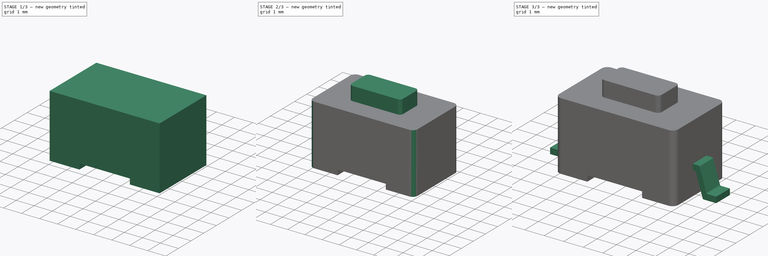
[diagram: build sequence overview — one tinted view per stage of 3, left to right]
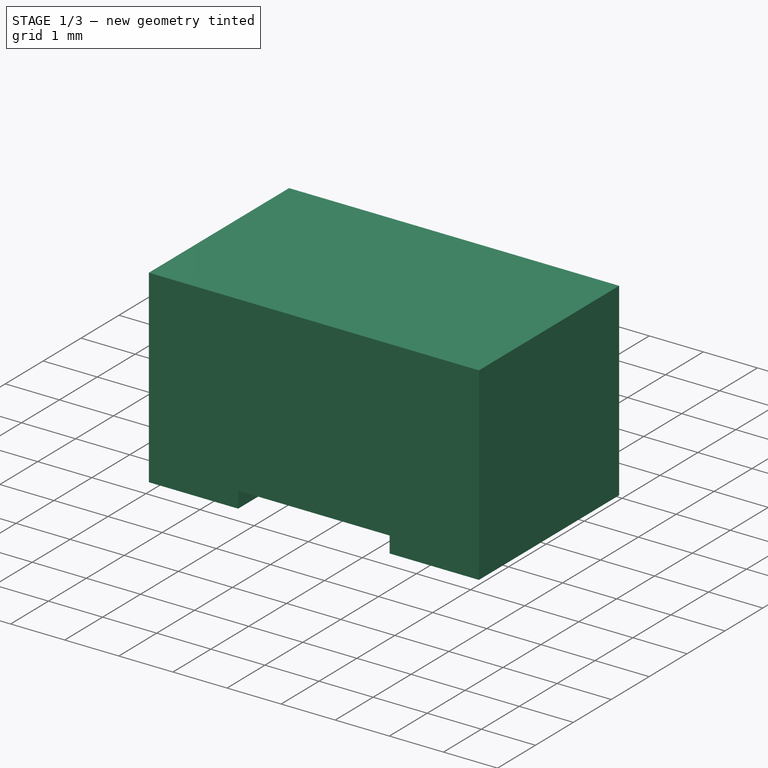
[diagram: stage 1 of 3 — iso view after this stage's code; geometry added in this stage tinted green]
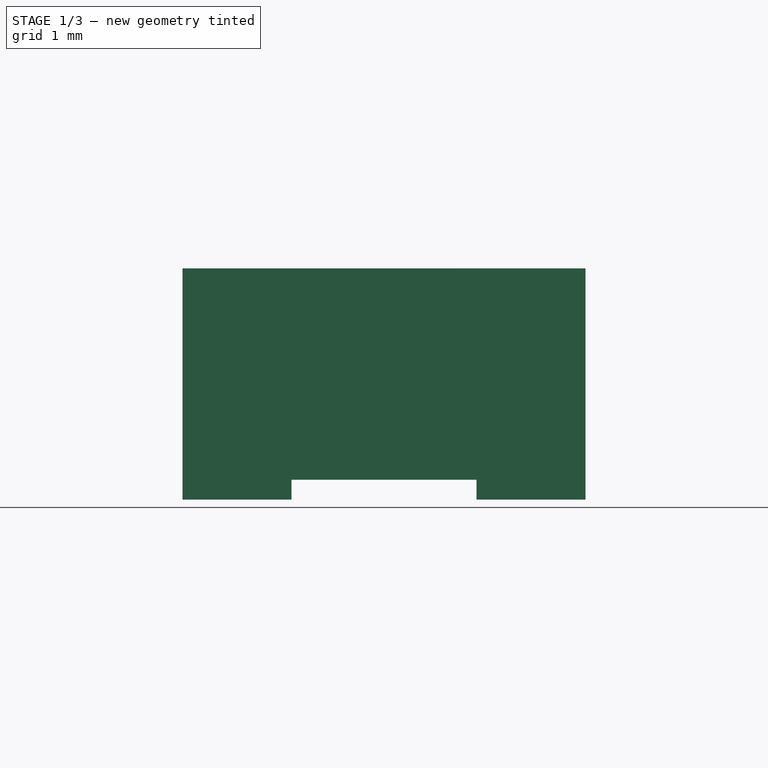
[diagram: stage 1 of 3 — front view after this stage's code; geometry added in this stage tinted green]
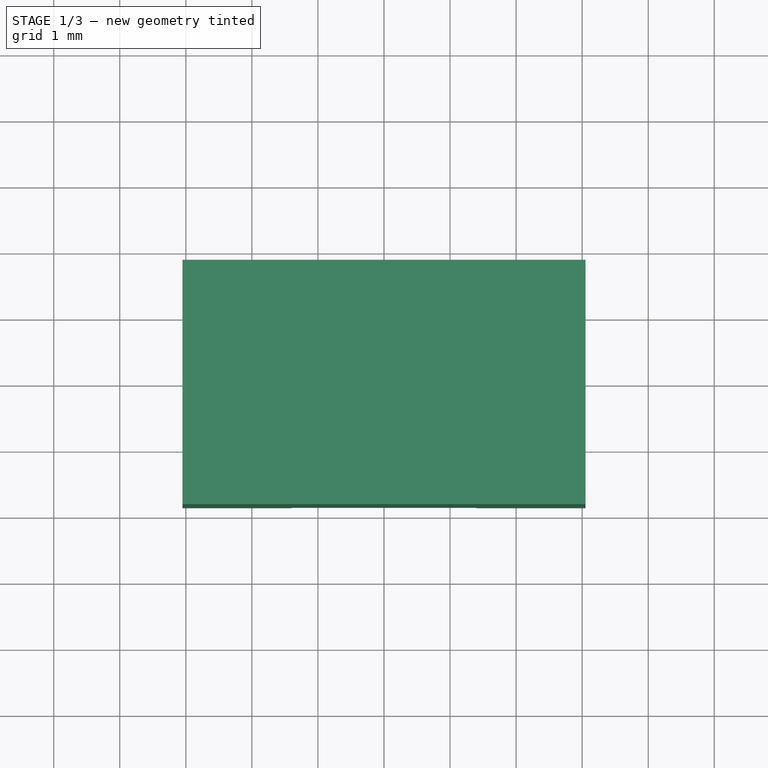
[diagram: stage 1 of 3 — top view after this stage's code; geometry added in this stage tinted green]
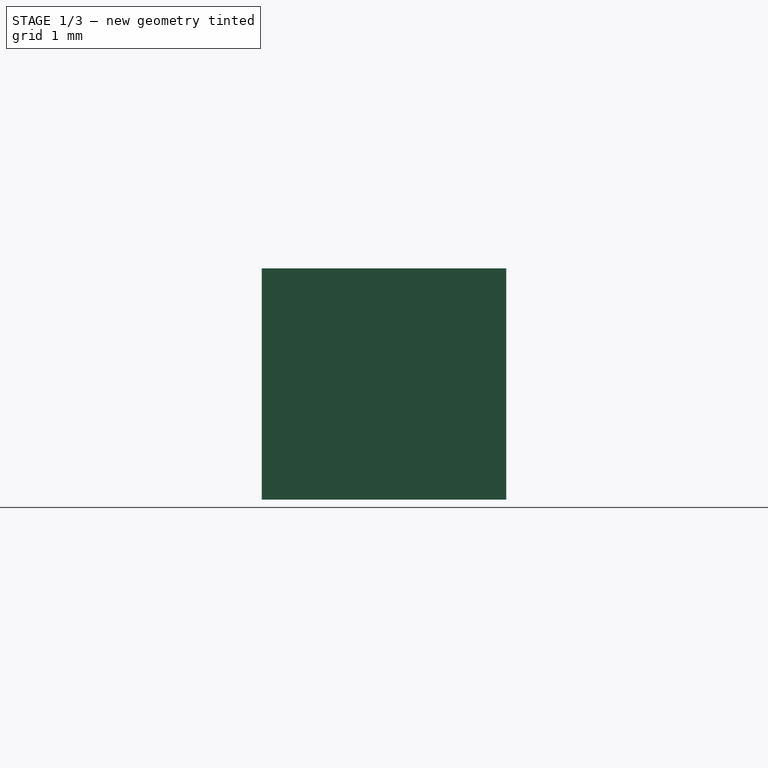
[diagram: stage 1 of 3 — right view after this stage's code; geometry added in this stage tinted green]
FCSTD DOCUMENT  (FreeCAD 0.16R6712 (Git))
Label: SW_3x6_1,6x7,4
License: All rights reserved
LicenseURL: http://en.wikipedia.org/wiki/All_rights_reserved
objects: Sketcher::SketchObject×4, PartDesign::Pad×3, PartDesign::Fillet×2, PartDesign::Pocket×1, Part::MultiFuse×1
note: 15 computed .brp shape members not serialized (recipe doc carries the construction recipe); baked Part::Feature solids carry a one-line shape summary decoded from their .brp

FEATURE [Sketcher::SketchObject] Sketch001  label="korpus"
  sketch-geometry (4):
    g0: LineSegment StartX=-3.05 StartY=1.85 StartZ=0 EndX=3.05 EndY=1.85 EndZ=0
    g1: LineSegment StartX=3.05 StartY=1.85 StartZ=0 EndX=3.05 EndY=-1.85 EndZ=0
    g2: LineSegment StartX=3.05 StartY=-1.85 StartZ=0 EndX=-3.05 EndY=-1.85 EndZ=0
    g3: LineSegment StartX=-3.05 StartY=-1.85 StartZ=0 EndX=-3.05 EndY=1.85 EndZ=0
  constraints (12):
    c: Coincident(g0,g1)
    c: Coincident(g1,g2)
    c: Coincident(g2,g3)
    c: Coincident(g3,g0)
    c: Horizontal(g0)
    c: Horizontal(g2)
    c: Vertical(g1)
    c: Vertical(g3)
    c: Symmetric(g0,g1,g-1)
    c: Symmetric(g0,g0,g-2)
    c: DistanceX(g2,g2) = 6.1
    c: DistanceY(g1,g1) = 3.7
FEATURE [PartDesign::Pad] Pad001  label="korpus001"
  Length = 3.5
  Length2 = 100
  Sketch = -> Sketch001
  Type = 0
FEATURE [Sketcher::SketchObject] Sketch002
  ExternalGeometry = -> [Pad001]
  Placement = pos=(0,0,0) rot=(1,0,0;3.14159rad)
  Support = -> Pad001 [Face5]
  sketch-geometry (4):
    g0: LineSegment StartX=-1.4 StartY=1.85 StartZ=0 EndX=1.4 EndY=1.85 EndZ=0
    g1: LineSegment StartX=1.4 StartY=1.85 StartZ=0 EndX=1.4 EndY=-1.85 EndZ=0
    g2: LineSegment StartX=1.4 StartY=-1.85 StartZ=0 EndX=-1.4 EndY=-1.85 EndZ=0
    g3: LineSegment StartX=-1.4 StartY=-1.85 StartZ=0 EndX=-1.4 EndY=1.85 EndZ=0
  constraints (12):
    c: Coincident(g0,g1)
    c: Coincident(g1,g2)
    c: Coincident(g2,g3)
    c: Coincident(g3,g0)
    c: Horizontal(g0)
    c: Horizontal(g2)
    c: Vertical(g1)
    c: Vertical(g3)
    c: Symmetric(g1,g2,g-2)
    c: Symmetric(g1,g0,g-1)
    c: PointOnObject(g0,g-3)
    c: DistanceX(g2,g2) = 2.8
FEATURE [PartDesign::Pocket] Pocket  label="korpus_spod_wyciecie"
  Length = 0.3
  Sketch = -> Sketch002
  Type = 0
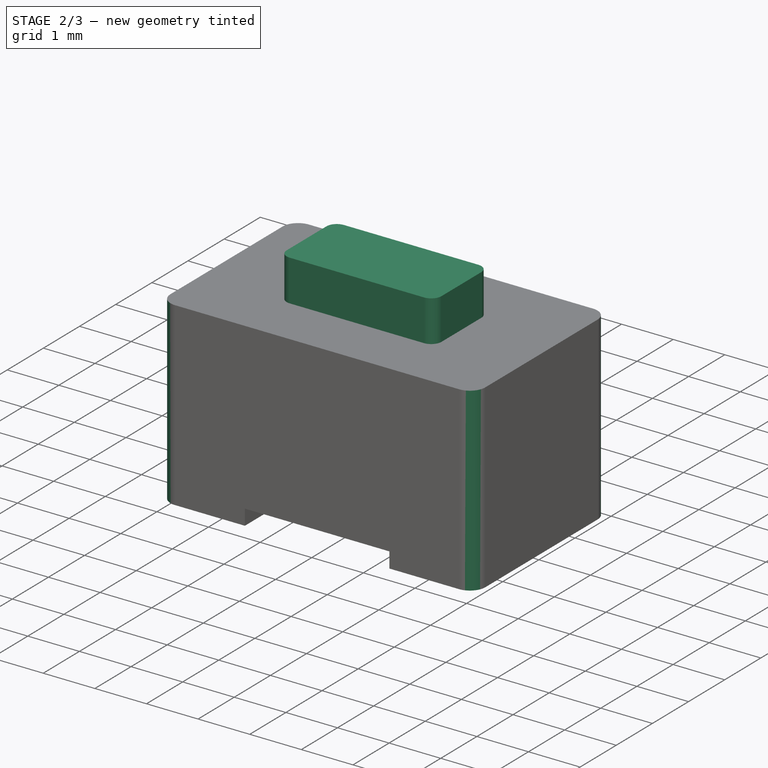
[diagram: stage 2 of 3 — iso view after this stage's code; geometry added in this stage tinted green]
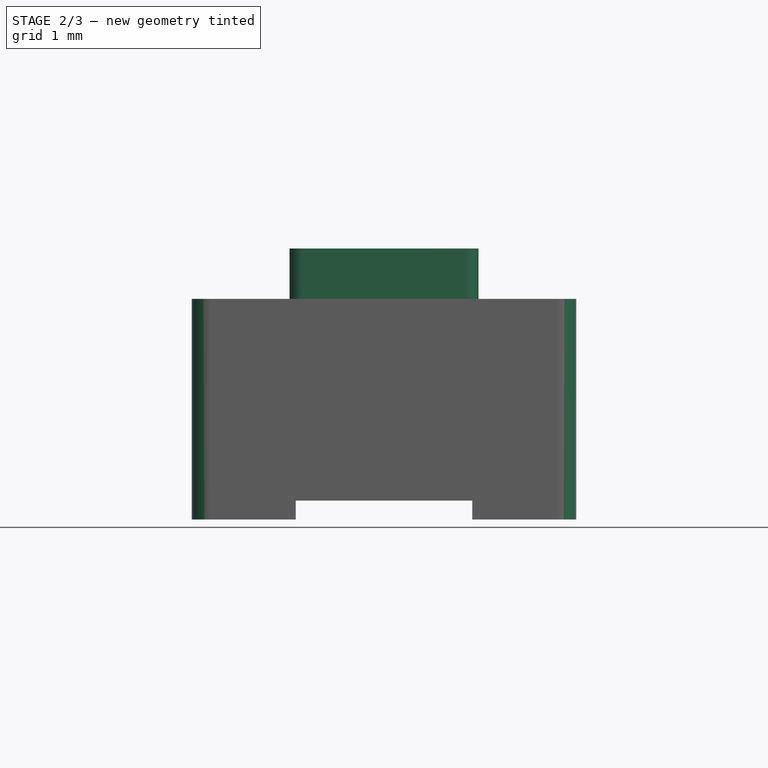
[diagram: stage 2 of 3 — front view after this stage's code; geometry added in this stage tinted green]
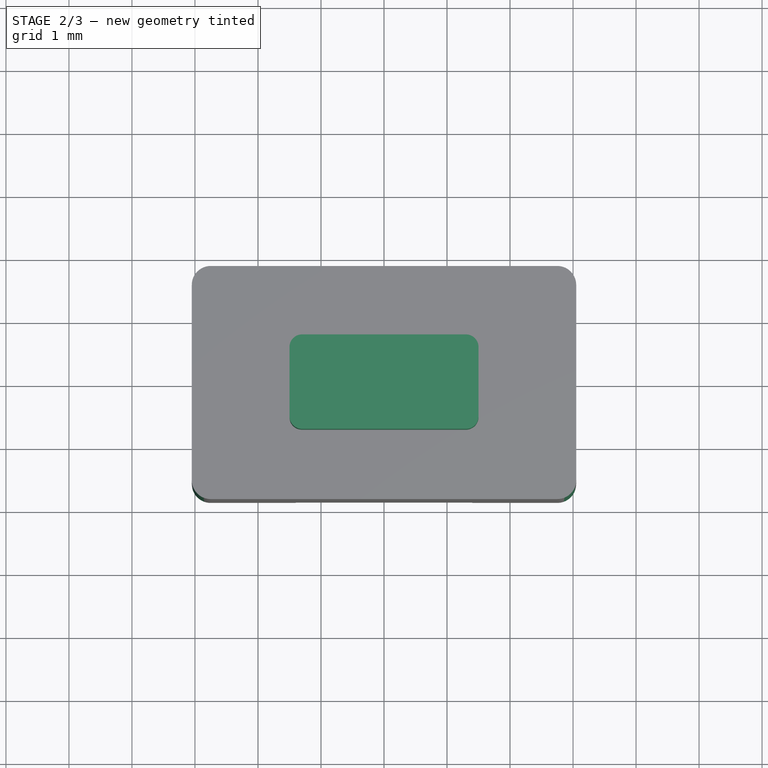
[diagram: stage 2 of 3 — top view after this stage's code; geometry added in this stage tinted green]
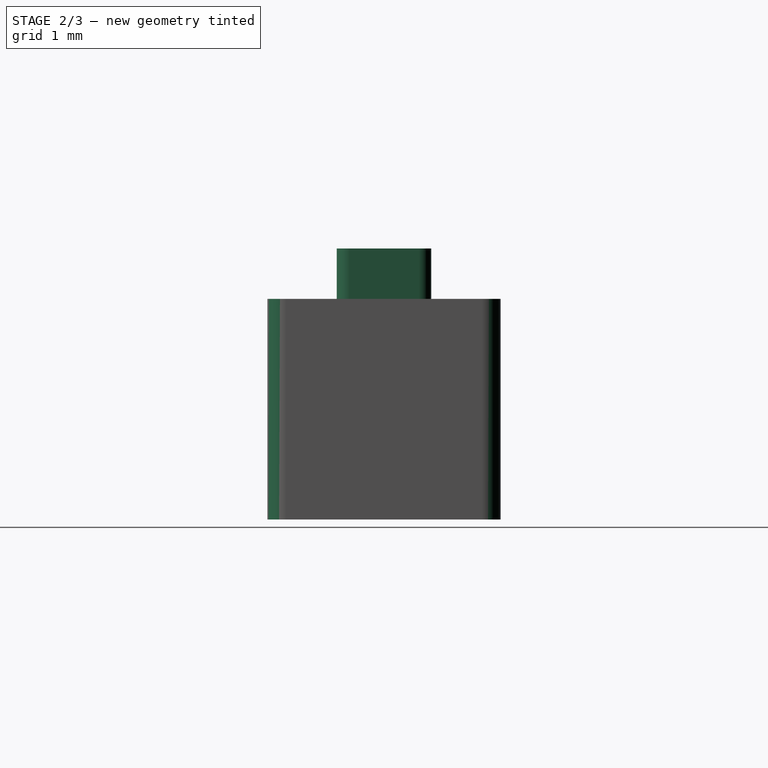
[diagram: stage 2 of 3 — right view after this stage's code; geometry added in this stage tinted green]
FEATURE [PartDesign::Fillet] Fillet  label="korpus_spod_wyciecie_zaokraglony"
  Base = -> Pocket [Edge24,Edge8,Edge20,Edge6]
  Radius = 0.3
FEATURE [Sketcher::SketchObject] Sketch003
  Placement = pos=(0,0,3.5) rot=(0,0,1;0rad)
  Support = -> Fillet [Face5]
  sketch-geometry (4):
    g0: LineSegment StartX=-1.5 StartY=0.75 StartZ=0 EndX=1.5 EndY=0.75 EndZ=0
    g1: LineSegment StartX=1.5 StartY=0.75 StartZ=0 EndX=1.5 EndY=-0.75 EndZ=0
    g2: LineSegment StartX=1.5 StartY=-0.75 StartZ=0 EndX=-1.5 EndY=-0.75 EndZ=0
    g3: LineSegment StartX=-1.5 StartY=-0.75 StartZ=0 EndX=-1.5 EndY=0.75 EndZ=0
  constraints (12):
    c: Coincident(g0,g1)
    c: Coincident(g1,g2)
    c: Coincident(g2,g3)
    c: Coincident(g3,g0)
    c: Horizontal(g0)
    c: Horizontal(g2)
    c: Vertical(g1)
    c: Vertical(g3)
    c: Symmetric(g0,g1,g-1)
    c: Symmetric(g0,g0,g-2)
    c: DistanceY(g1,g1) = 1.5
    c: DistanceX(g2,g2) = 3
FEATURE [PartDesign::Pad] Pad002  label="przycisk"
  Length = 0.8
  Length2 = 100
  Sketch = -> Sketch003
  Type = 0
FEATURE [PartDesign::Fillet] Fillet001  label="przycisk_zaokraglony"
  Base = -> Pad002 [Edge9,Edge7,Edge5,Edge11]
  Radius = 0.2
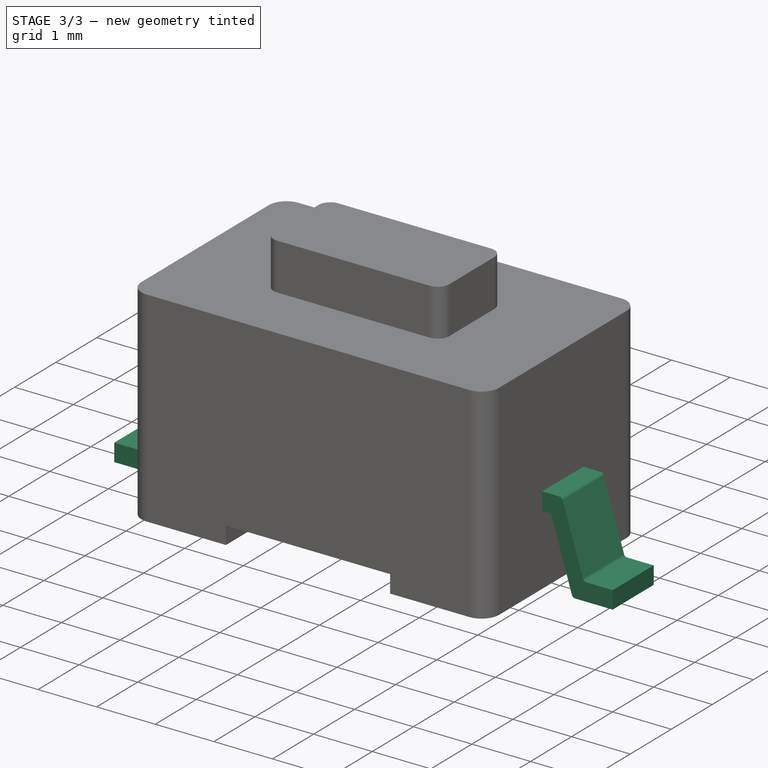
[diagram: stage 3 of 3 — iso view after this stage's code; geometry added in this stage tinted green]
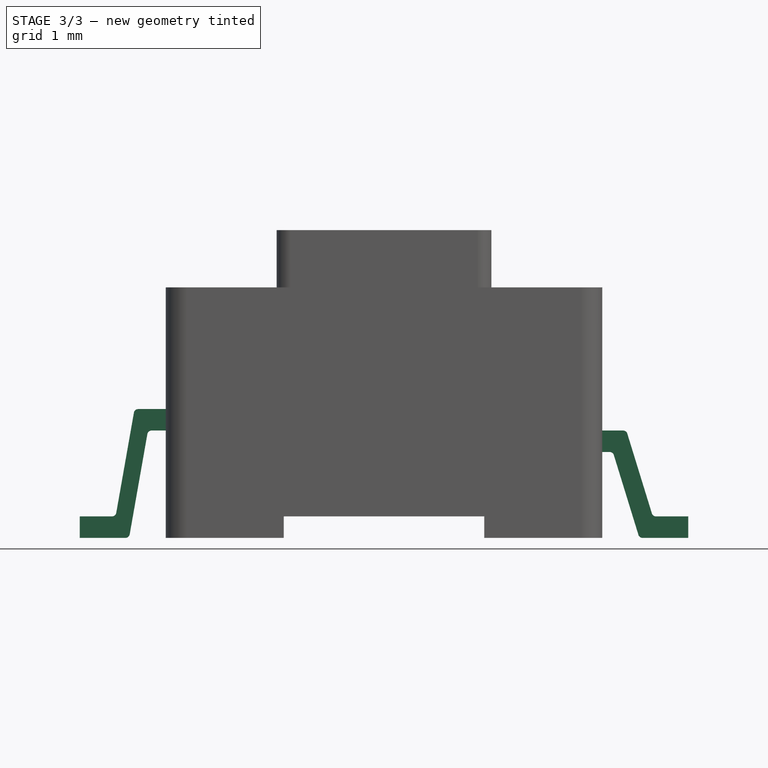
[diagram: stage 3 of 3 — front view after this stage's code; geometry added in this stage tinted green]
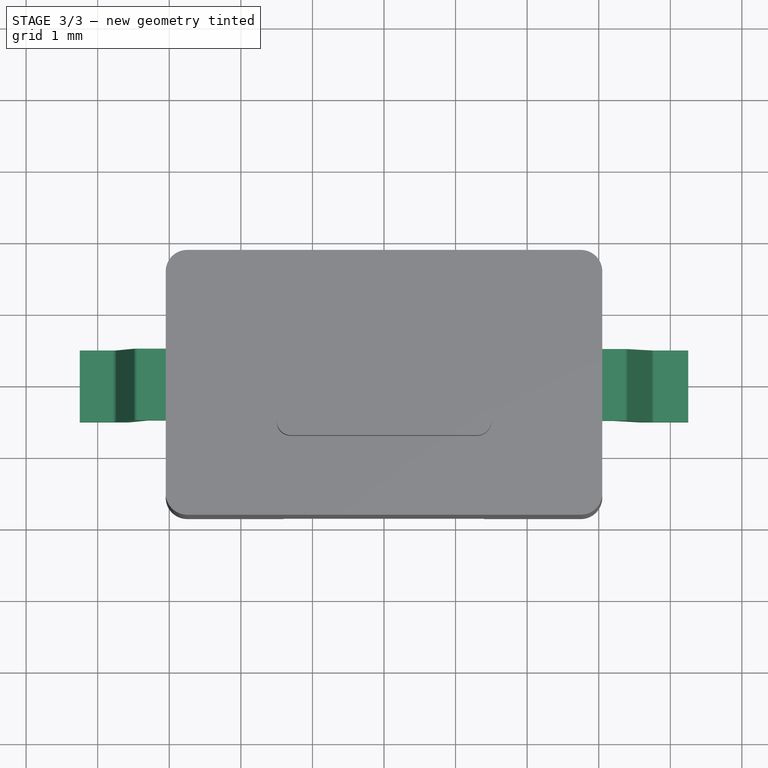
[diagram: stage 3 of 3 — top view after this stage's code; geometry added in this stage tinted green]
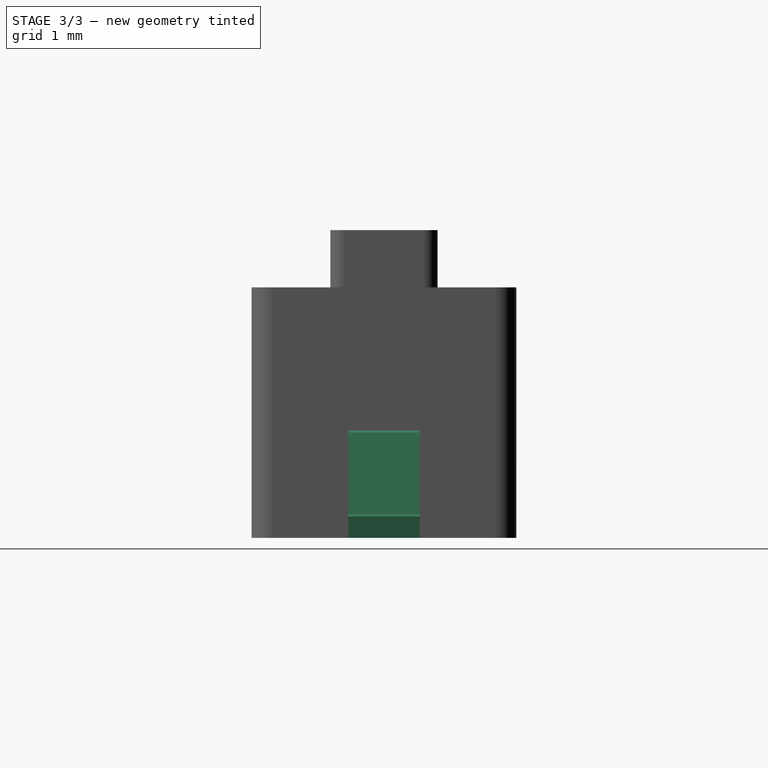
[diagram: stage 3 of 3 — right view after this stage's code; geometry added in this stage tinted green]
FEATURE [Sketcher::SketchObject] Sketch
  Placement = pos=(0,0,0) rot=(-1,0,0;4.71239rad)
  sketch-geometry (24):
    g0: LineSegment StartX=4.25 StartY=0 StartZ=0 EndX=4.25 EndY=0.3 EndZ=0
    g1: LineSegment StartX=3.05 StartY=1.5 StartZ=0 EndX=3.05 EndY=1.2 EndZ=0
    g2: LineSegment StartX=-3.05 StartY=1.5 StartZ=0 EndX=-3.05 EndY=1.8 EndZ=0
    g3: LineSegment StartX=-4.25 StartY=0 StartZ=0 EndX=-4.25 EndY=0.3 EndZ=0
    g4: LineSegment StartX=-4.25 StartY=0.3 StartZ=0 EndX=-3.8 EndY=0.3 EndZ=0
    g5: LineSegment StartX=-3.74091 StartY=0.349581 StartZ=0 EndX=-3.49391 EndY=1.75042 EndZ=0
    g6: LineSegment StartX=-3.43482 StartY=1.8 StartZ=0 EndX=-3.05 EndY=1.8 EndZ=0
    g7: LineSegment StartX=-4.25 StartY=0 StartZ=0 EndX=-3.61219 EndY=0 EndZ=0
    g8: LineSegment StartX=-3.5531 StartY=0.0495811 StartZ=0 EndX=-3.30609 EndY=1.45042 EndZ=0
    g9: LineSegment StartX=-3.24701 StartY=1.5 StartZ=0 EndX=-3.05 EndY=1.5 EndZ=0
    g10: LineSegment StartX=4.25 StartY=0.3 StartZ=0 EndX=3.8 EndY=0.3 EndZ=0
    g11: LineSegment StartX=3.74266 StartY=0.342323 StartZ=0 EndX=3.39881 EndY=1.45768 EndZ=0
    g12: LineSegment StartX=3.34147 StartY=1.5 StartZ=0 EndX=3.05 EndY=1.5 EndZ=0
    g13: LineSegment StartX=4.25 StartY=0 StartZ=0 EndX=3.61219 EndY=0 EndZ=0
    g14: LineSegment StartX=3.15366 StartY=1.2 StartZ=0 EndX=3.05 EndY=1.2 EndZ=0
    g15: LineSegment StartX=3.55485 StartY=0.0423233 StartZ=0 EndX=3.21099 EndY=1.15768 EndZ=0
    g16: ArcOfCircle CenterX=-3.43482 CenterY=1.74 CenterZ=0 NormalX=0 NormalY=0 NormalZ=1 Radius=0.06 StartAngle=1.5708 EndAngle=2.96706
    g17: ArcOfCircle CenterX=-3.8 CenterY=0.36 CenterZ=0 NormalX=0 NormalY=0 NormalZ=1 Radius=0.06 StartAngle=4.71239 EndAngle=6.10865
    g18: ArcOfCircle CenterX=-3.61219 CenterY=0.06 CenterZ=0 NormalX=0 NormalY=0 NormalZ=1 Radius=0.06 StartAngle=4.71239 EndAngle=6.10865
    g19: ArcOfCircle CenterX=-3.24701 CenterY=1.44 CenterZ=0 NormalX=0 NormalY=0 NormalZ=1 Radius=0.06 StartAngle=1.5708 EndAngle=2.96706
    g20: ArcOfCircle CenterX=3.34147 CenterY=1.44 CenterZ=0 NormalX=0 NormalY=0 NormalZ=1 Radius=0.06 StartAngle=0.299049 EndAngle=1.5708
    g21: ArcOfCircle CenterX=3.15366 CenterY=1.14 CenterZ=0 NormalX=0 NormalY=0 NormalZ=1 Radius=0.06 StartAngle=0.299049 EndAngle=1.5708
    g22: ArcOfCircle CenterX=3.8 CenterY=0.36 CenterZ=0 NormalX=0 NormalY=0 NormalZ=1 Radius=0.06 StartAngle=3.44064 EndAngle=4.71239
    g23: ArcOfCircle CenterX=3.61219 CenterY=0.06 CenterZ=0 NormalX=0 NormalY=0 NormalZ=1 Radius=0.06 StartAngle=3.44064 EndAngle=4.71239
  constraints (60):
    c: Vertical(g0)
    c: Vertical(g1)
    c: Vertical(g2)
    c: Vertical(g3)
    c: Symmetric(g2,g1,g-2)
    c: DistanceX(g2,g1) = 6.1
    c: Symmetric(g3,g0,g-2)
    c: DistanceX(g3,g0) = 8.5
    c: Equal(g3,g0)
    c: Equal(g0,g1)
    c: Equal(g1,g2)
    c: DistanceY(g3,g2) = 1.5
    c: Horizontal(g4)
    c: Horizontal(g6)
    c: Coincident(g2,g6)
    c: Coincident(g3,g7)
    c: Horizontal(g7)
    c: Coincident(g9,g2)
    c: Horizontal(g9)
    c: Horizontal(g10)
    c: Coincident(g12,g1)
    c: Horizontal(g12)
    c: Coincident(g0,g13)
    c: Horizontal(g14)
    c: Coincident(g1,g14)
    c: DistanceY(g0,g0) = 0.3
    c: Parallel(g5,g8)
    c: Horizontal(g13)
    c: Parallel(g15,g11)
    c: Coincident(g0,g10)
    c: Coincident(g3,g4)
    c: Angle(g5,g4) = 1.74533
    c: Tangent(g6,g16) = 1.5708
    c: Tangent(g5,g16) = 1.5708
    c: Tangent(g5,g17) = -1.5708
    c: Tangent(g4,g17) = -1.5708
    c: Tangent(g7,g18) = -1.5708
    c: Tangent(g8,g18) = -1.5708
    c: Tangent(g8,g19) = 1.5708
    c: Tangent(g9,g19) = 1.5708
    c: Tangent(g12,g20) = -1.5708
    c: Tangent(g11,g20) = -1.5708
    c: Tangent(g14,g21) = -1.5708
    c: Tangent(g15,g21) = -1.5708
    c: Tangent(g11,g22) = 1.5708
    c: Tangent(g10,g22) = 1.5708
    c: Tangent(g15,g23) = 1.5708
    c: Tangent(g13,g23) = 1.5708
    c: Equal(g16,g19)
    c: Equal(g19,g18)
    c: Equal(g18,g17)
    c: Equal(g17,g20)
    c: Equal(g20,g21)
    c: Equal(g21,g23)
    c: Equal(g23,g22)
    c: PointOnObject(g3,g-1)
    c: Radius(g23) = 0.06
    c: DistanceX(g10,g0) = 0.45
    c: Symmetric(g13,g7,g-2)
    c: Symmetric(g10,g4,g-2)
FEATURE [PartDesign::Pad] Pad  label="nozki"
  Length = 1
  Length2 = 100
  Midplane = true
  Placement = pos=(0,0,0) rot=(-1,0,0;4.71239rad)
  Sketch = -> Sketch
  Type = 0
FEATURE [Part::MultiFuse] Fusion  label="SW_3x6_1,6x7,4"
  Shapes = -> [Pad,Fillet001]
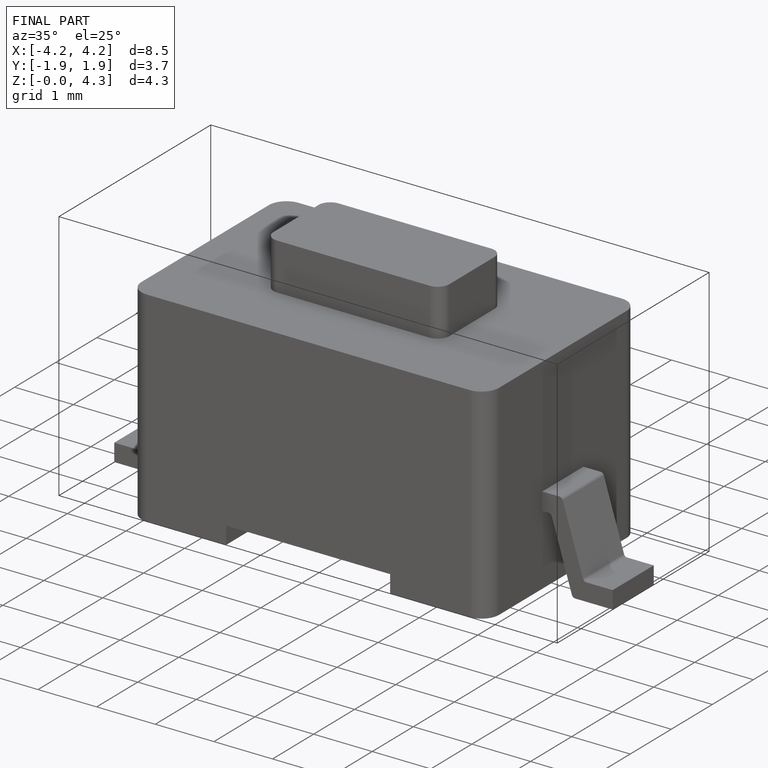
[diagram: finished part — iso view with bounding-box wireframe]
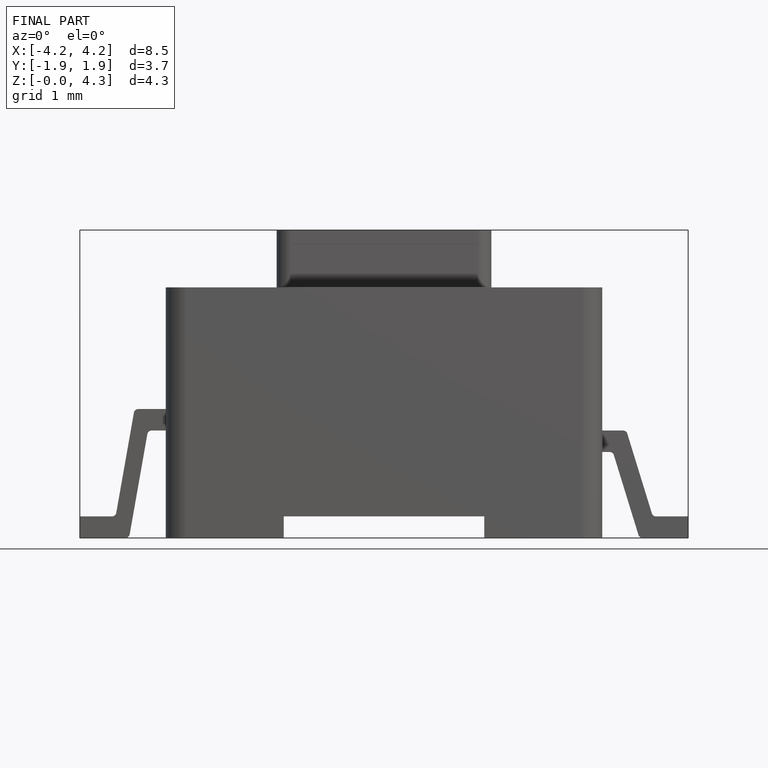
[diagram: finished part — front view with bounding-box wireframe]
